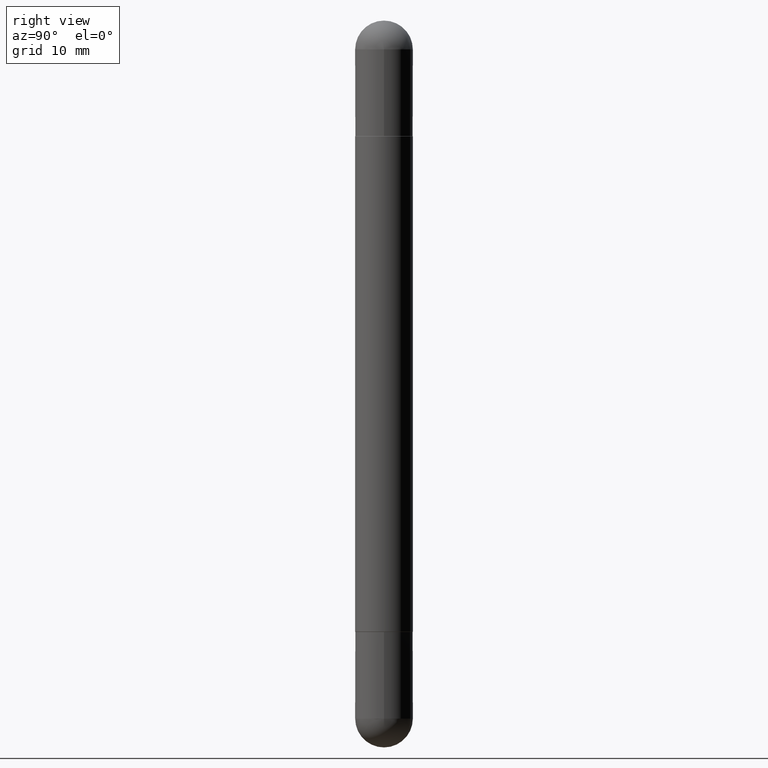
[diagram: clean part render]
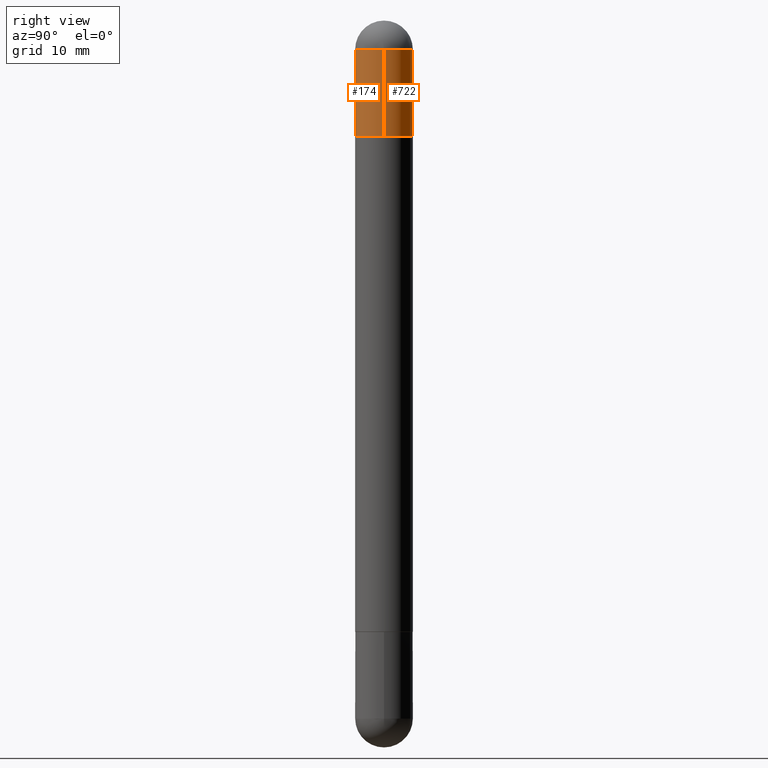
[diagram: same view with one multi-face feature highlighted, each face labeled with its STEP entity id]
A machine part, right view. The highlighted faces form ONE feature: a constant-radius fillet chain: 2 tangent blend faces with common blend radius 2.5006 mm. The faces share edges in the B-rep.
Their STEP definitions:
[1] entity #722 (Cylinder):
#34 = CIRCLE ( 'NONE', #706, 0.09845000000000000973 ) ;
#38 = AXIS2_PLACEMENT_3D ( 'NONE', #246, #251, #738 ) ;
#77 = EDGE_CURVE ( 'NONE', #389, #446, #34, .T. ) ;
#79 = ORIENTED_EDGE ( 'NONE', *, *, #759, .T. ) ;
#90 = DIRECTION ( 'NONE',  ( 1.000000000000000000, -6.982962677686273810E-15, 0.000000000000000000 ) ) ;
#97 = CARTESIAN_POINT ( 'NONE',  ( -0.09845000000000000973, -7.125338866396221621E-15, -0.09844999999999987095 ) ) ;
#132 = ORIENTED_EDGE ( 'NONE', *, *, #550, .T. ) ;
#135 = LINE ( 'NONE', #594, #181 ) ;
#139 = DIRECTION ( 'NONE',  ( -2.445468806185136877E-29, 3.491481338843145188E-15, -1.000000000000000000 ) ) ;
#146 = DIRECTION ( 'NONE',  ( 2.445468806185136597E-29, -3.491481338843145583E-15, 1.000000000000000000 ) ) ;
#148 = CARTESIAN_POINT ( 'NONE',  ( 5.824739876012068780E-29, -8.316184826923546689E-15, -0.09844999999999987095 ) ) ;
#166 = CYLINDRICAL_SURFACE ( 'NONE', #388, 0.09845000000000000973 ) ;
#181 = VECTOR ( 'NONE', #390, 39.37007874015748143 ) ;
#182 = CIRCLE ( 'NONE', #38, 0.09844999999999999585 ) ;
#216 = CARTESIAN_POINT ( 'NONE',  ( 5.824739876012068780E-29, -8.316184826923546689E-15, -0.09844999999999987095 ) ) ;
#246 = CARTESIAN_POINT ( 'NONE',  ( 5.102715210985907397E-29, -7.285324961630108994E-15, -0.3936999999999999389 ) ) ;
#251 = DIRECTION ( 'NONE',  ( 2.445468806185136597E-29, -3.491481338843145583E-15, 1.000000000000000000 ) ) ;
#325 = CARTESIAN_POINT ( 'NONE',  ( -0.09845000000000000973, 6.754160278806074041E-16, -2.480300000000000171 ) ) ;
#356 = DIRECTION ( 'NONE',  ( -2.445468806185136597E-29, 3.491481338843145583E-15, -1.000000000000000000 ) ) ;
#388 = AXIS2_PLACEMENT_3D ( 'NONE', #421, #356, #607 ) ;
#389 = VERTEX_POINT ( 'NONE', #695 ) ;
#390 = DIRECTION ( 'NONE',  ( -2.445468806185136877E-29, 3.491481338843145188E-15, -1.000000000000000000 ) ) ;
#400 = AXIS2_PLACEMENT_3D ( 'NONE', #216, #146, #586 ) ;
#402 = DIRECTION ( 'NONE',  ( 2.445468806185136597E-29, -3.491481338843145583E-15, 1.000000000000000000 ) ) ;
#420 = EDGE_CURVE ( 'NONE', #446, #644, #534, .T. ) ;
#421 = CARTESIAN_POINT ( 'NONE',  ( 0.000000000000000000, 0.000000000000000000, -2.480300000000000171 ) ) ;
#424 = EDGE_CURVE ( 'NONE', #644, #774, #657, .T. ) ;
#446 = VERTEX_POINT ( 'NONE', #704 ) ;
#492 = CARTESIAN_POINT ( 'NONE',  ( -0.09844999999999999585, -7.125338866396220043E-15, -0.3936999999999999389 ) ) ;
#534 = CIRCLE ( 'NONE', #400, 0.09845000000000000973 ) ;
#550 = EDGE_CURVE ( 'NONE', #389, #628, #135, .T. ) ;
#585 = ORIENTED_EDGE ( 'NONE', *, *, #420, .F. ) ;
#586 = DIRECTION ( 'NONE',  ( 1.000000000000000000, -6.982962677686273810E-15, 0.000000000000000000 ) ) ;
#594 = CARTESIAN_POINT ( 'NONE',  ( 0.09845000000000000973, -6.874726756182130531E-16, -2.480300000000000171 ) ) ;
#607 = DIRECTION ( 'NONE',  ( 1.000000000000000000, -6.982962677686266711E-15, 0.000000000000000000 ) ) ;
#612 = VECTOR ( 'NONE', #139, 39.37007874015748143 ) ;
#623 = EDGE_LOOP ( 'NONE', ( #734, #585, #800, #132, #79 ) ) ;
#628 = VERTEX_POINT ( 'NONE', #787 ) ;
#644 = VERTEX_POINT ( 'NONE', #97 ) ;
#657 = LINE ( 'NONE', #325, #612 ) ;
#695 = CARTESIAN_POINT ( 'NONE',  ( 0.09845000000000000973, -8.488227569895042768E-15, -0.09844999999999987095 ) ) ;
#704 = CARTESIAN_POINT ( 'NONE',  ( 6.874726756182700483E-16, 0.09844999999999154427, -0.09844999999999953788 ) ) ;
#706 = AXIS2_PLACEMENT_3D ( 'NONE', #148, #402, #90 ) ;
#722 = ADVANCED_FACE ( 'NONE', ( #732 ), #166, .T. ) ;
#732 = FACE_OUTER_BOUND ( 'NONE', #623, .T. ) ;
#734 = ORIENTED_EDGE ( 'NONE', *, *, #424, .F. ) ;
#738 = DIRECTION ( 'NONE',  ( 1.000000000000000000, -6.982962677686265922E-15, 0.000000000000000000 ) ) ;
#759 = EDGE_CURVE ( 'NONE', #628, #774, #182, .T. ) ;
#774 = VERTEX_POINT ( 'NONE', #492 ) ;
#787 = CARTESIAN_POINT ( 'NONE',  ( 0.09844999999999999585, -7.972797637248321554E-15, -0.3936999999999999389 ) ) ;
#800 = ORIENTED_EDGE ( 'NONE', *, *, #77, .F. ) ;
[2] entity #174 (Cylinder):
#7 = CIRCLE ( 'NONE', #237, 0.09845000000000000973 ) ;
#43 = DIRECTION ( 'NONE',  ( -2.445468806185136597E-29, 3.491481338843145583E-15, -1.000000000000000000 ) ) ;
#48 = AXIS2_PLACEMENT_3D ( 'NONE', #488, #43, #292 ) ;
#97 = CARTESIAN_POINT ( 'NONE',  ( -0.09845000000000000973, -7.125338866396221621E-15, -0.09844999999999987095 ) ) ;
#99 = AXIS2_PLACEMENT_3D ( 'NONE', #540, #741, #229 ) ;
#105 = ORIENTED_EDGE ( 'NONE', *, *, #550, .F. ) ;
#117 = EDGE_CURVE ( 'NONE', #438, #389, #348, .T. ) ;
#135 = LINE ( 'NONE', #594, #181 ) ;
#139 = DIRECTION ( 'NONE',  ( -2.445468806185136877E-29, 3.491481338843145188E-15, -1.000000000000000000 ) ) ;
#174 = ADVANCED_FACE ( 'NONE', ( #249 ), #552, .T. ) ;
#181 = VECTOR ( 'NONE', #390, 39.37007874015748143 ) ;
#229 = DIRECTION ( 'NONE',  ( 1.000000000000000000, -6.982962677686273810E-15, 0.000000000000000000 ) ) ;
#237 = AXIS2_PLACEMENT_3D ( 'NONE', #563, #756, #380 ) ;
#249 = FACE_OUTER_BOUND ( 'NONE', #503, .T. ) ;
#253 = DIRECTION ( 'NONE',  ( 2.445468806185136597E-29, -3.491481338843145583E-15, 1.000000000000000000 ) ) ;
#292 = DIRECTION ( 'NONE',  ( 1.000000000000000000, -6.982962677686266711E-15, 0.000000000000000000 ) ) ;
#313 = CARTESIAN_POINT ( 'NONE',  ( 5.102715210985907397E-29, -7.285324961630108994E-15, -0.3936999999999999389 ) ) ;
#325 = CARTESIAN_POINT ( 'NONE',  ( -0.09845000000000000973, 6.754160278806074041E-16, -2.480300000000000171 ) ) ;
#348 = CIRCLE ( 'NONE', #99, 0.09845000000000000973 ) ;
#373 = ORIENTED_EDGE ( 'NONE', *, *, #405, .F. ) ;
#379 = EDGE_CURVE ( 'NONE', #774, #628, #432, .T. ) ;
#380 = DIRECTION ( 'NONE',  ( 1.000000000000000000, -6.982962677686273810E-15, 0.000000000000000000 ) ) ;
#389 = VERTEX_POINT ( 'NONE', #695 ) ;
#390 = DIRECTION ( 'NONE',  ( -2.445468806185136877E-29, 3.491481338843145188E-15, -1.000000000000000000 ) ) ;
#392 = ORIENTED_EDGE ( 'NONE', *, *, #379, .T. ) ;
#405 = EDGE_CURVE ( 'NONE', #644, #438, #7, .T. ) ;
#409 = ORIENTED_EDGE ( 'NONE', *, *, #117, .F. ) ;
#424 = EDGE_CURVE ( 'NONE', #644, #774, #657, .T. ) ;
#432 = CIRCLE ( 'NONE', #626, 0.09844999999999999585 ) ;
#438 = VERTEX_POINT ( 'NONE', #574 ) ;
#488 = CARTESIAN_POINT ( 'NONE',  ( 0.000000000000000000, 0.000000000000000000, -2.480300000000000171 ) ) ;
#492 = CARTESIAN_POINT ( 'NONE',  ( -0.09844999999999999585, -7.125338866396220043E-15, -0.3936999999999999389 ) ) ;
#497 = DIRECTION ( 'NONE',  ( 1.000000000000000000, -6.982962677686265922E-15, 0.000000000000000000 ) ) ;
#503 = EDGE_LOOP ( 'NONE', ( #373, #673, #392, #105, #409 ) ) ;
#540 = CARTESIAN_POINT ( 'NONE',  ( 5.824739876012068780E-29, -8.316184826923546689E-15, -0.09844999999999987095 ) ) ;
#550 = EDGE_CURVE ( 'NONE', #389, #628, #135, .T. ) ;
#552 = CYLINDRICAL_SURFACE ( 'NONE', #48, 0.09845000000000000973 ) ;
#563 = CARTESIAN_POINT ( 'NONE',  ( 5.824739876012068780E-29, -8.316184826923546689E-15, -0.09844999999999987095 ) ) ;
#574 = CARTESIAN_POINT ( 'NONE',  ( -6.754160278805513950E-16, -0.09845000000000865559, -0.09845000000000021789 ) ) ;
#594 = CARTESIAN_POINT ( 'NONE',  ( 0.09845000000000000973, -6.874726756182130531E-16, -2.480300000000000171 ) ) ;
#612 = VECTOR ( 'NONE', #139, 39.37007874015748143 ) ;
#626 = AXIS2_PLACEMENT_3D ( 'NONE', #313, #253, #497 ) ;
#628 = VERTEX_POINT ( 'NONE', #787 ) ;
#644 = VERTEX_POINT ( 'NONE', #97 ) ;
#657 = LINE ( 'NONE', #325, #612 ) ;
#673 = ORIENTED_EDGE ( 'NONE', *, *, #424, .T. ) ;
#695 = CARTESIAN_POINT ( 'NONE',  ( 0.09845000000000000973, -8.488227569895042768E-15, -0.09844999999999987095 ) ) ;
#741 = DIRECTION ( 'NONE',  ( 2.445468806185136597E-29, -3.491481338843145583E-15, 1.000000000000000000 ) ) ;
#756 = DIRECTION ( 'NONE',  ( 2.445468806185136597E-29, -3.491481338843145583E-15, 1.000000000000000000 ) ) ;
#774 = VERTEX_POINT ( 'NONE', #492 ) ;
#787 = CARTESIAN_POINT ( 'NONE',  ( 0.09844999999999999585, -7.972797637248321554E-15, -0.3936999999999999389 ) ) ;